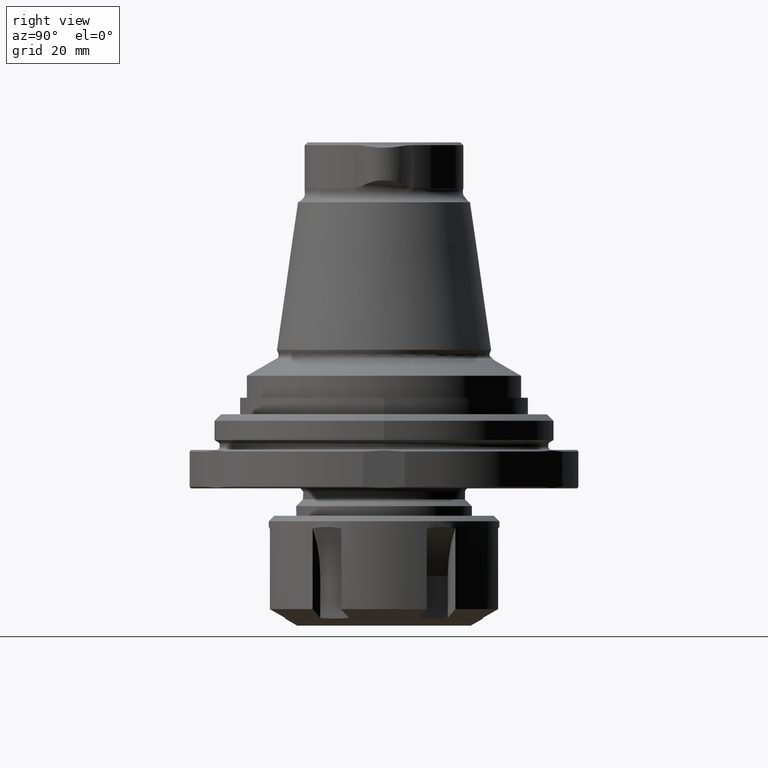
[diagram: clean part render]
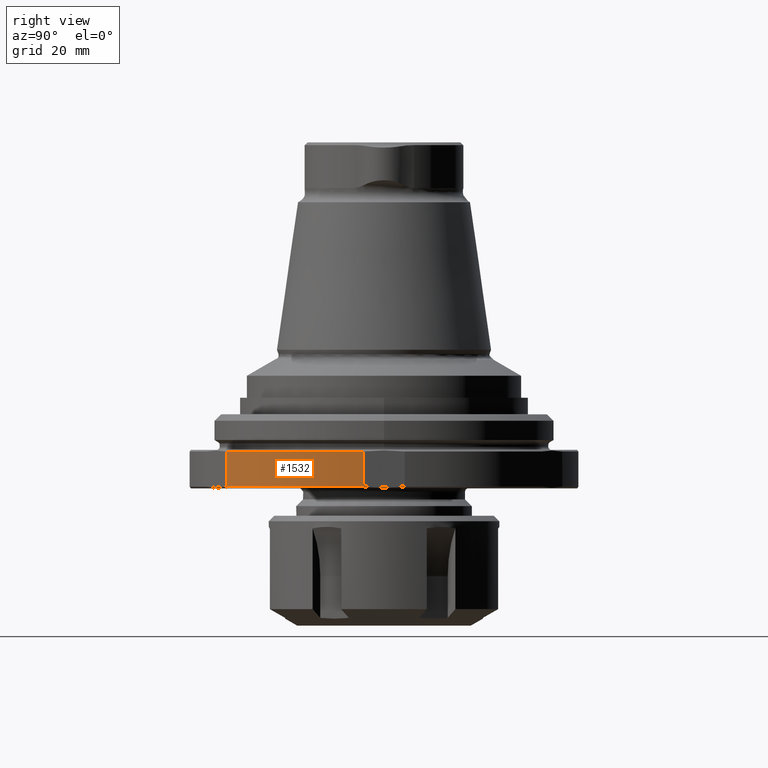
[diagram: same view with one face highlighted and labeled with its STEP entity id]
A machine part, right view. The second image highlights one B-rep face of the part: STEP entity #1532.
In plain terms, the highlighted cylindrical surface (partial cylindrical patch) has radius 35.5 mm, axis along (0, -0, -1).
Its self-contained STEP definition (entity closure, byte-faithful):
#131=LINE('',#2635,#189);
#132=LINE('',#2645,#190);
#189=VECTOR('',#2037,1000.);
#190=VECTOR('',#2046,1000.);
#263=CYLINDRICAL_SURFACE('',#1700,35.5);
#531=ORIENTED_EDGE('',*,*,#853,.F.);
#532=ORIENTED_EDGE('',*,*,#849,.T.);
#533=ORIENTED_EDGE('',*,*,#854,.T.);
#534=ORIENTED_EDGE('',*,*,#845,.T.);
#845=EDGE_CURVE('',#1025,#1024,#131,.T.);
#849=EDGE_CURVE('',#1026,#1027,#132,.F.);
#853=EDGE_CURVE('',#1026,#1024,#1131,.T.);
#854=EDGE_CURVE('',#1027,#1025,#1132,.T.);
#1024=VERTEX_POINT('',#2634);
#1025=VERTEX_POINT('',#2636);
#1026=VERTEX_POINT('',#2646);
#1027=VERTEX_POINT('',#2647);
#1131=CIRCLE('',#1701,35.5);
#1132=CIRCLE('',#1702,35.5);
#1245=EDGE_LOOP('',(#531,#532,#533,#534));
#1385=FACE_BOUND('',#1245,.T.);
#1532=ADVANCED_FACE('',(#1385),#263,.T.);
#1700=AXIS2_PLACEMENT_3D('',#2659,#2048,#2049);
#1701=AXIS2_PLACEMENT_3D('',#2660,#2050,#2051);
#1702=AXIS2_PLACEMENT_3D('',#2661,#2052,#2053);
#2037=DIRECTION('',(2.51499441280814E-17,-2.60563148754756E-18,-1.));
#2046=DIRECTION('',(2.51499441280814E-17,-2.60563148754756E-18,-1.));
#2048=DIRECTION('',(2.51499441280814E-17,-2.60563148754756E-18,-1.));
#2049=DIRECTION('',(1.,-1.83694883835627E-16,2.51499441280814E-17));
#2050=DIRECTION('',(2.51499441280814E-17,-2.60563148754756E-18,-1.));
#2051=DIRECTION('',(1.,-1.83694883835627E-16,2.51499441280814E-17));
#2052=DIRECTION('',(2.51499441280814E-17,-2.60563148754756E-18,-1.));
#2053=DIRECTION('',(1.,-1.83694883835627E-16,2.51499441280814E-17));
#2634=CARTESIAN_POINT('',(20.9088341473601,-28.689207981368,-7.70000000000001));
#2635=CARTESIAN_POINT('',(20.9088341473601,-28.689207981368,-1.00000000000001));
#2636=CARTESIAN_POINT('',(20.9088341473601,-28.689207981368,-1.30000000000001));
#2645=CARTESIAN_POINT('',(35.3,-3.76297754444537,-1.00000000000001));
#2646=CARTESIAN_POINT('',(35.3,-3.76297754444537,-7.70000000000001));
#2647=CARTESIAN_POINT('',(35.3,-3.76297754444537,-1.30000000000001));
#2659=CARTESIAN_POINT('',(6.91930965057338E-15,-2.13529515197911E-15,-1.00000000000001));
#2660=CARTESIAN_POINT('',(7.08781427623152E-15,-2.15275288294568E-15,-7.70000000000001));
#2661=CARTESIAN_POINT('',(6.9268546338118E-15,-2.13607684142537E-15,-1.30000000000001));